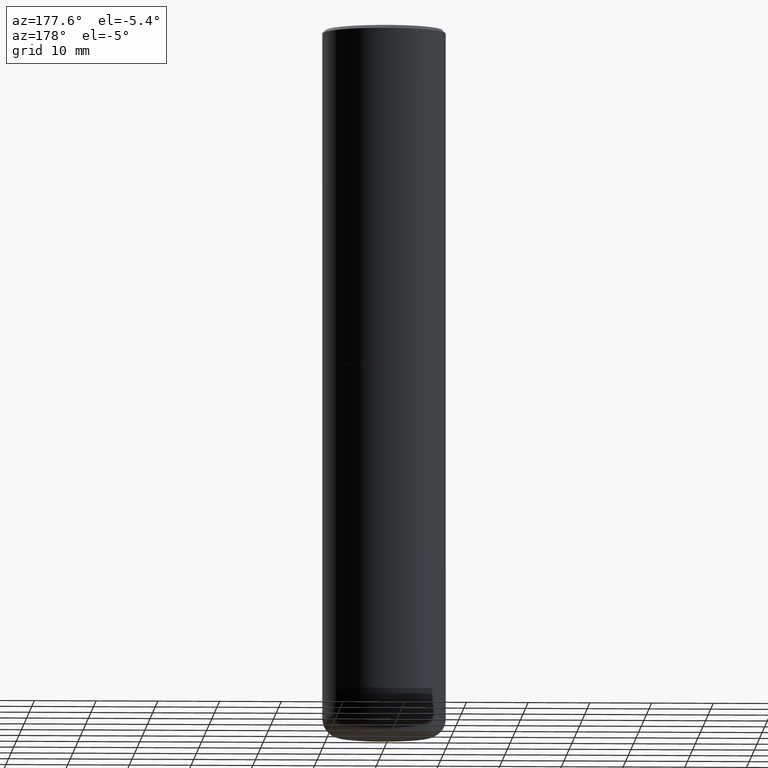
[diagram: clean part render]
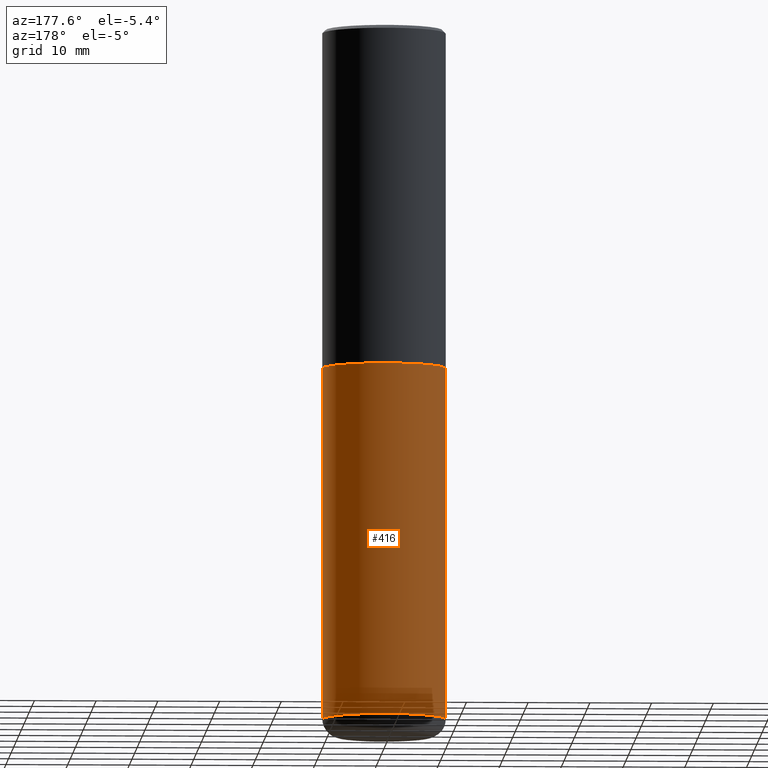
[diagram: same view with one face highlighted and labeled with its STEP entity id]
A machine part, auxiliary view. The second image highlights one B-rep face of the part: STEP entity #416.
In plain terms, the highlighted cylindrical surface (partial cylindrical patch) has radius 10 mm, axis along (-0, 0, 1).
Its self-contained STEP definition (entity closure, byte-faithful):
#22 = DIRECTION ( 'NONE',  ( -2.445468806185136597E-29, 3.491481338843145583E-15, 1.000000000000000000 ) ) ;
#27 = CARTESIAN_POINT ( 'NONE',  ( -0.3936999999999998834, -1.259828021294133576E-14, -4.409499999999999531 ) ) ;
#34 = ORIENTED_EDGE ( 'NONE', *, *, #154, .F. ) ;
#38 = CARTESIAN_POINT ( 'NONE',  ( 0.000000000000000000, 0.000000000000000000, 0.000000000000000000 ) ) ;
#61 = CARTESIAN_POINT ( 'NONE',  ( 0.3937000000000000499, -2.749192406205083217E-15, 1.919750796630860172E-29 ) ) ;
#62 = VERTEX_POINT ( 'NONE', #194 ) ;
#70 = DIRECTION ( 'NONE',  ( -2.445468806185136597E-29, 3.491481338843145583E-15, 1.000000000000000000 ) ) ;
#71 = AXIS2_PLACEMENT_3D ( 'NONE', #316, #22, #327 ) ;
#91 = VECTOR ( 'NONE', #342, 39.37007874015748143 ) ;
#103 = ORIENTED_EDGE ( 'NONE', *, *, #410, .T. ) ;
#104 = ORIENTED_EDGE ( 'NONE', *, *, #329, .F. ) ;
#113 = DIRECTION ( 'NONE',  ( 1.000000000000000000, -6.982962677686265133E-15, 0.000000000000000000 ) ) ;
#135 = VECTOR ( 'NONE', #195, 39.37007874015748143 ) ;
#145 = CARTESIAN_POINT ( 'NONE',  ( -0.3937000000000000499, 2.797406750687514786E-15, -1.936584745033356735E-29 ) ) ;
#154 = EDGE_CURVE ( 'NONE', #304, #397, #189, .T. ) ;
#159 = CARTESIAN_POINT ( 'NONE',  ( 0.3937000000000000499, -1.030964609733602906E-14, -2.165399999999999547 ) ) ;
#175 = CYLINDRICAL_SURFACE ( 'NONE', #204, 0.3937000000000000499 ) ;
#189 = CIRCLE ( 'NONE', #249, 0.3937000000000000499 ) ;
#194 = CARTESIAN_POINT ( 'NONE',  ( 0.3936999999999998834, -1.814487936983393140E-14, -4.409499999999999531 ) ) ;
#195 = DIRECTION ( 'NONE',  ( -2.445468806185136877E-29, 3.491481338843145188E-15, 1.000000000000000000 ) ) ;
#199 = LINE ( 'NONE', #61, #135 ) ;
#204 = AXIS2_PLACEMENT_3D ( 'NONE', #38, #70, #398 ) ;
#206 = FACE_OUTER_BOUND ( 'NONE', #414, .T. ) ;
#228 = VERTEX_POINT ( 'NONE', #27 ) ;
#249 = AXIS2_PLACEMENT_3D ( 'NONE', #307, #272, #113 ) ;
#272 = DIRECTION ( 'NONE',  ( -2.445468806185136597E-29, 3.491481338843145583E-15, 1.000000000000000000 ) ) ;
#298 = EDGE_CURVE ( 'NONE', #62, #228, #321, .T. ) ;
#300 = ORIENTED_EDGE ( 'NONE', *, *, #298, .T. ) ;
#304 = VERTEX_POINT ( 'NONE', #159 ) ;
#305 = LINE ( 'NONE', #145, #91 ) ;
#307 = CARTESIAN_POINT ( 'NONE',  ( 5.295418152913293224E-29, -7.560453691130945845E-15, -2.165399999999999547 ) ) ;
#316 = CARTESIAN_POINT ( 'NONE',  ( 1.078329470087335798E-28, -1.539568696362884818E-14, -4.409499999999999531 ) ) ;
#321 = CIRCLE ( 'NONE', #71, 0.3937000000000000499 ) ;
#327 = DIRECTION ( 'NONE',  ( 1.000000000000000000, -6.982962677686262766E-15, 0.000000000000000000 ) ) ;
#329 = EDGE_CURVE ( 'NONE', #62, #304, #199, .T. ) ;
#331 = CARTESIAN_POINT ( 'NONE',  ( -0.3937000000000000499, -8.680663576692383017E-15, -2.165399999999999547 ) ) ;
#342 = DIRECTION ( 'NONE',  ( -2.445468806185136877E-29, 3.491481338843145188E-15, 1.000000000000000000 ) ) ;
#397 = VERTEX_POINT ( 'NONE', #331 ) ;
#398 = DIRECTION ( 'NONE',  ( 1.000000000000000000, -6.982962677686265922E-15, 4.876176775795935793E-29 ) ) ;
#410 = EDGE_CURVE ( 'NONE', #228, #397, #305, .T. ) ;
#414 = EDGE_LOOP ( 'NONE', ( #300, #103, #34, #104 ) ) ;
#416 = ADVANCED_FACE ( 'NONE', ( #206 ), #175, .T. ) ;